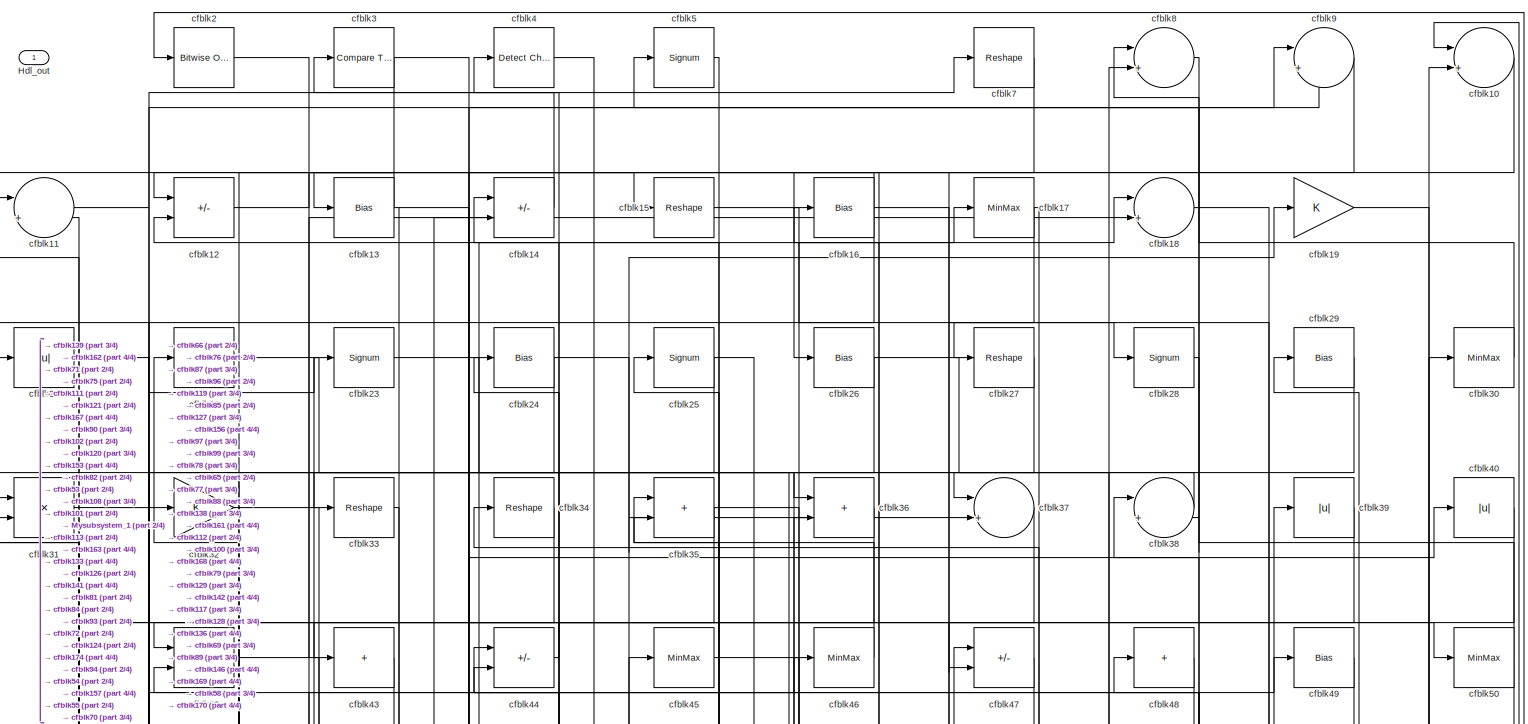
[diagram: root canvas - part 1/4, full width, top band]
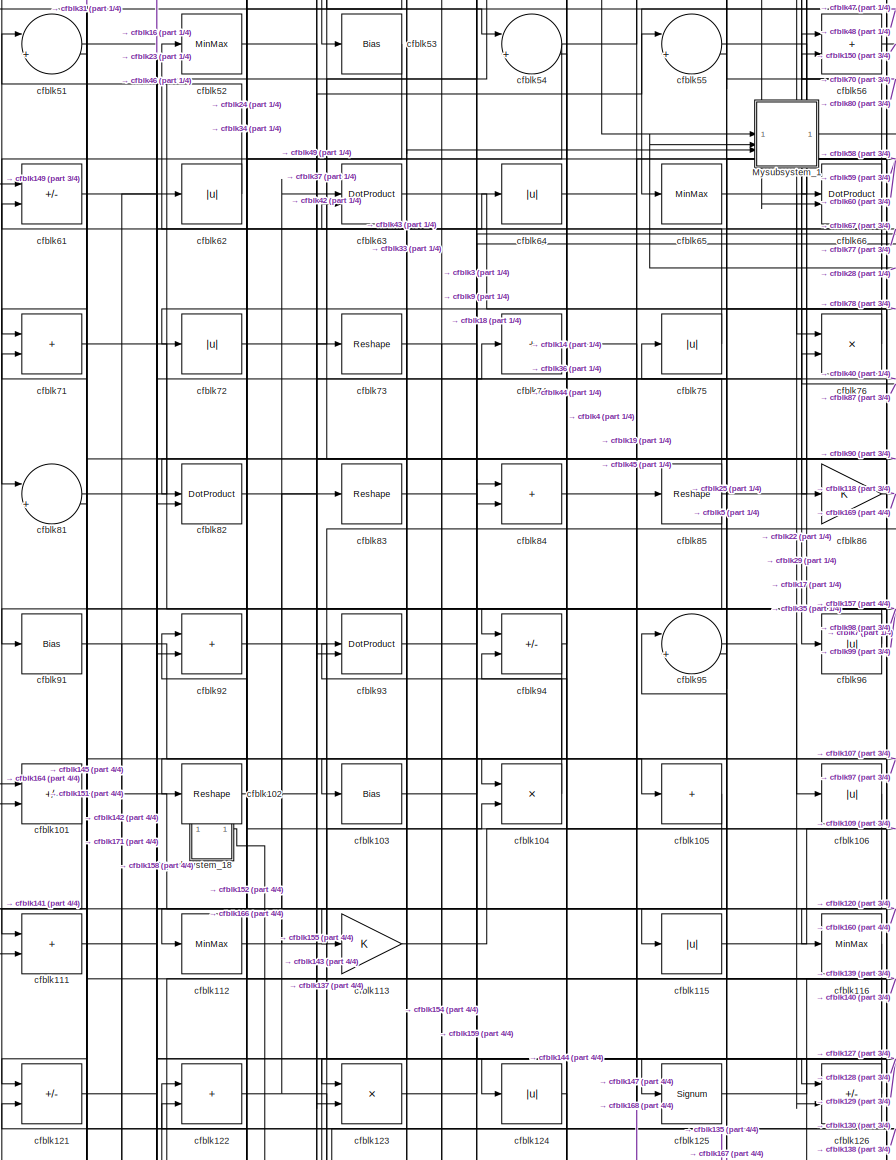
[diagram: root canvas - part 2/4, middle left region]
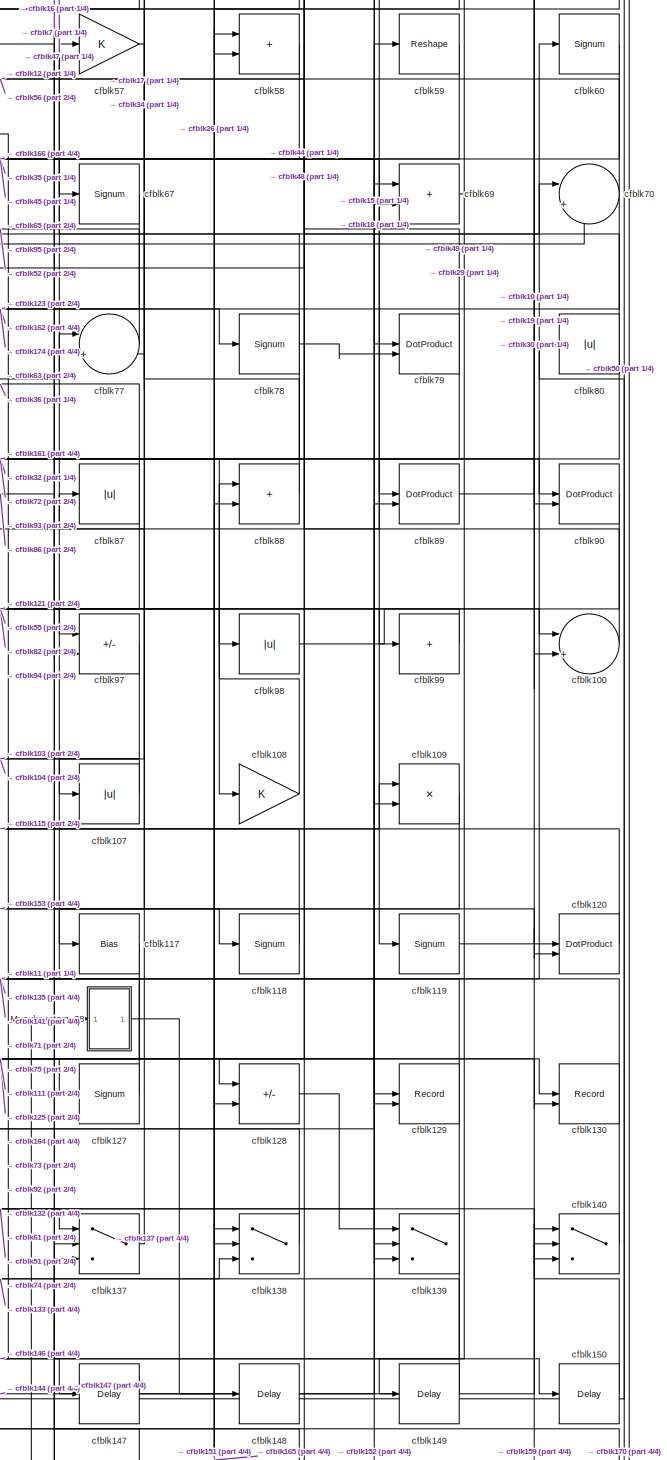
[diagram: root canvas - part 3/4, middle right region]
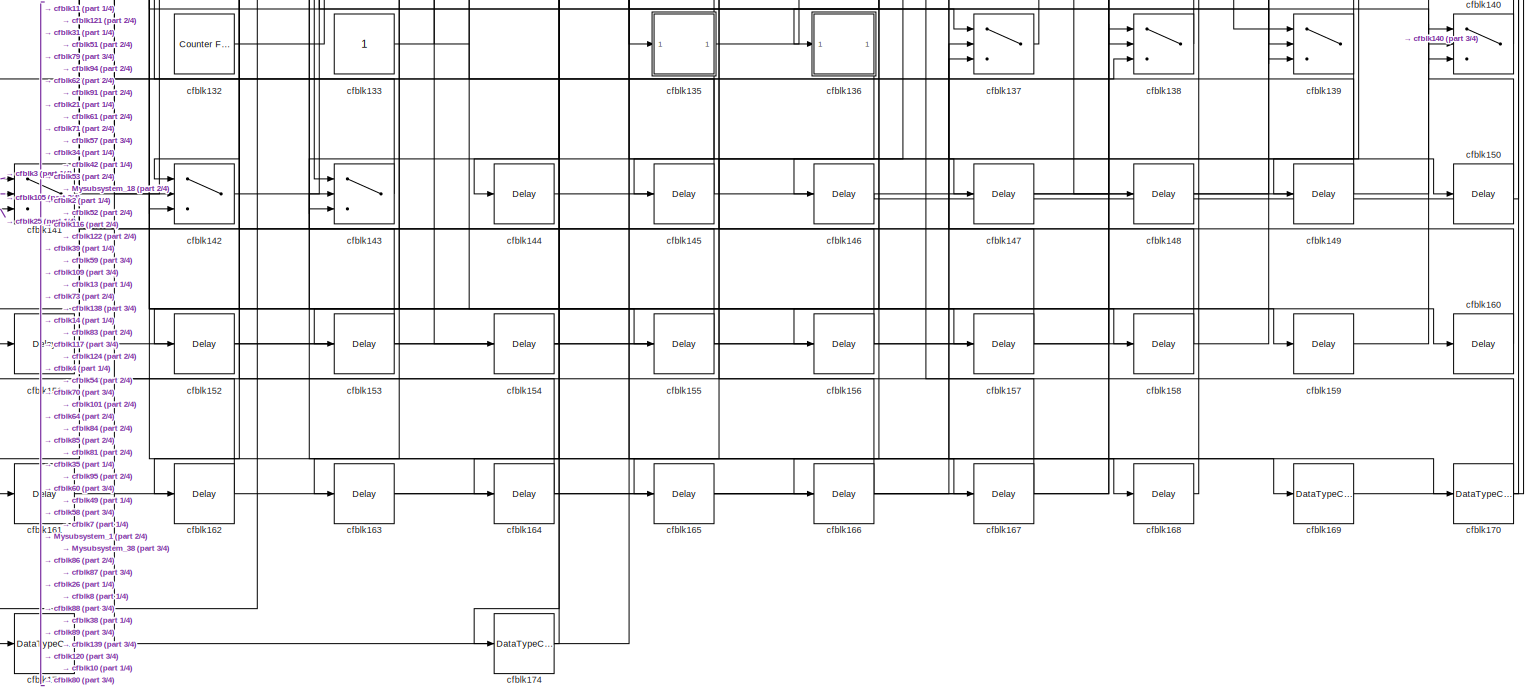
[diagram: root canvas - part 4/4, full width, bottom band]
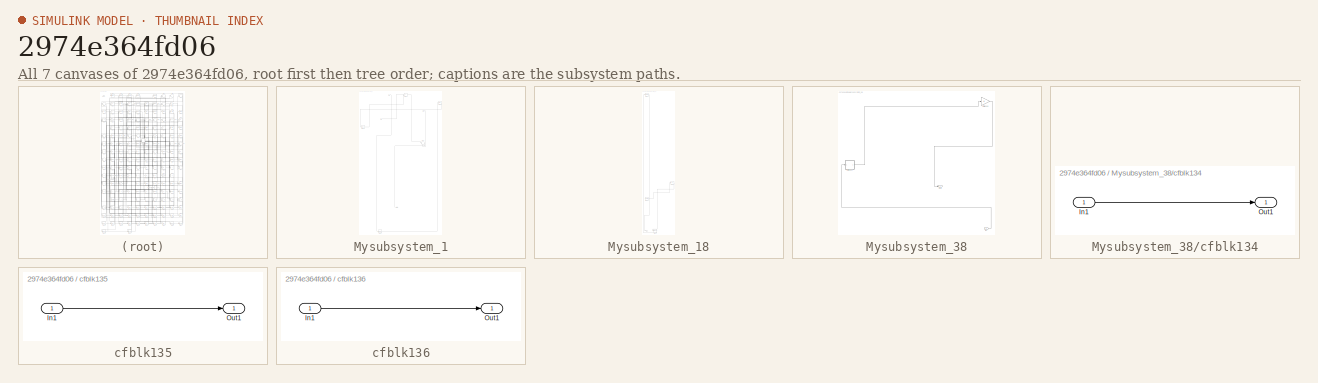
[diagram: thumbnail index - all 7 canvases of the model, root first then tree order]
MODEL slx_2974e364fd06
KIND model
CONFIG AbsTol = auto
CONFIG EnableMultiTasking = off
CONFIG FixedStep = auto
CONFIG MaxStep = auto
CONFIG MinStep = auto
CONFIG RelTol = 1e-3
CONFIG SampleTimeConstraint = Unconstrained
CONFIG SolverName = VariableStepAuto
CONFIG StartTime = 0.0
CONFIG StopTime = 10.0
BLOCK [Outport] Hdl_out
  OutDataTypeStr = uint8
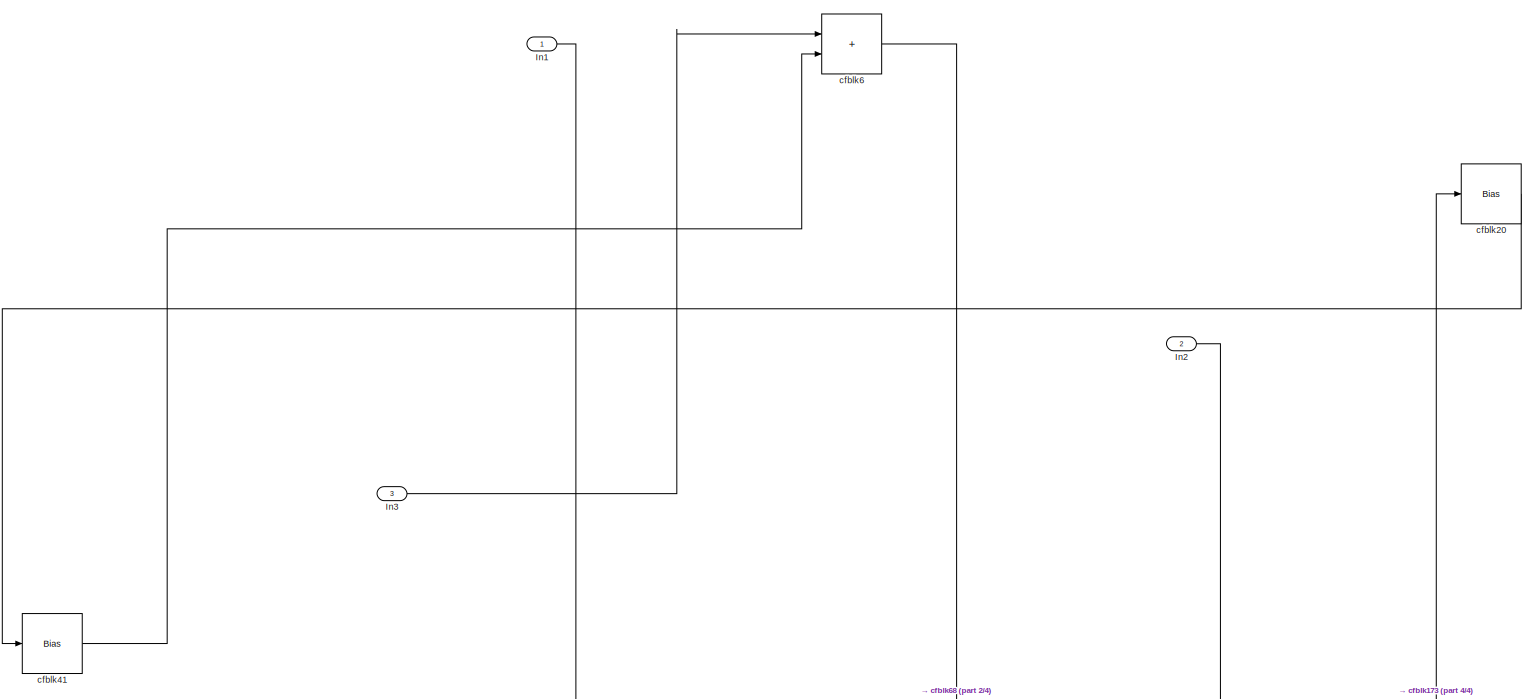
[diagram: Mysubsystem_1 - part 1/4, full width, top band]
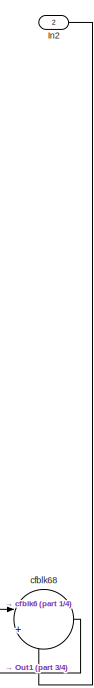
[diagram: Mysubsystem_1 - part 2/4, top right region]
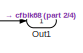
[diagram: Mysubsystem_1 - part 3/4, bottom center region]
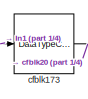
[diagram: Mysubsystem_1 - part 4/4, bottom left region]
BLOCK [SubSystem] Mysubsystem_1
  RTWFcnName = Mysubsystem_1
  RTWFcnNameOpts = User specified
  RTWFileNameOpts = Use function name
  RTWSystemCode = Reusable function
  TreatAsAtomicUnit = on
BLOCK [Inport] Mysubsystem_1/In1
BLOCK [Inport] Mysubsystem_1/In2
  Port = 2
BLOCK [Inport] Mysubsystem_1/In3
  Port = 3
BLOCK [Outport] Mysubsystem_1/Out1
BLOCK [DataTypeConversion] Mysubsystem_1/cfblk173
  OutDataTypeStr = uint8
  RndMeth = Floor
  SaturateOnIntegerOverflow = off
BLOCK [Bias] Mysubsystem_1/cfblk20
  Bias = 0.0
  SaturateOnIntegerOverflow = off
BLOCK [Bias] Mysubsystem_1/cfblk41
  Bias = 0.0
  SaturateOnIntegerOverflow = off
BLOCK [Sum] Mysubsystem_1/cfblk6
  IconShape = rectangular
BLOCK [Sum] Mysubsystem_1/cfblk68
  Inputs = |++
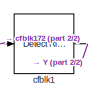
[diagram: Mysubsystem_18 - part 1/2, top left region]
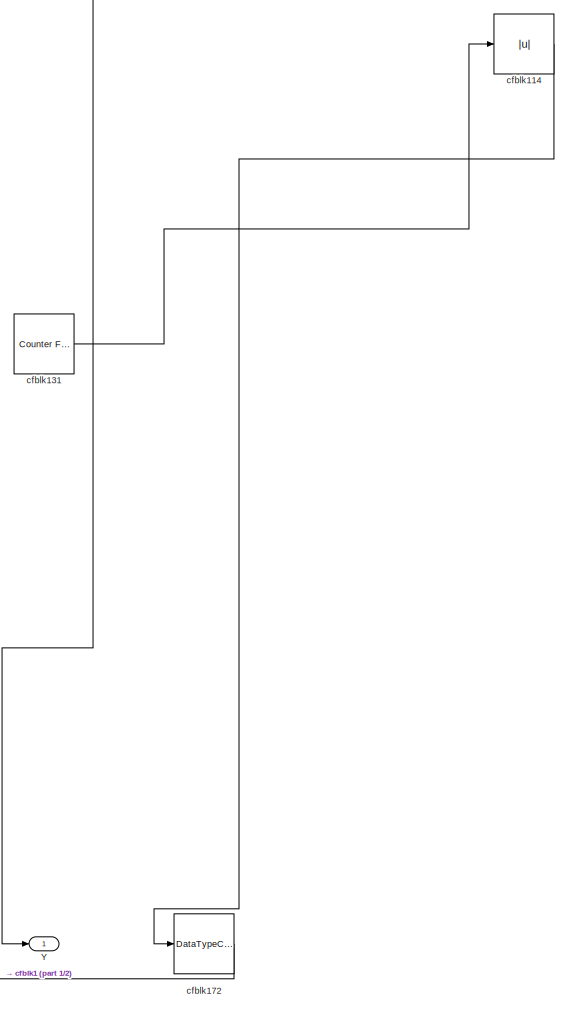
[diagram: Mysubsystem_18 - part 2/2, full width, bottom band]
BLOCK [SubSystem] Mysubsystem_18
  RTWFcnName = Mysubsystem_18
  RTWFcnNameOpts = User specified
  RTWFileNameOpts = Use function name
  RTWSystemCode = Reusable function
  TreatAsAtomicUnit = on
BLOCK [Outport] Mysubsystem_18/Y
BLOCK [Reference] Mysubsystem_18/cfblk1  REF=hdlsllib/Logic and Bit
Operations/Detect Rise
Nonnegative
  SourceBlock = hdlsllib/Logic and Bit\nOperations/Detect Rise\nNonnegative
  SourceType = Detect Rise Nonnegative
BLOCK [Abs] Mysubsystem_18/cfblk114
  SaturateOnIntegerOverflow = off
BLOCK [Reference] Mysubsystem_18/cfblk131  REF=hdlsllib/Sources/Counter
Free-Running
  SourceBlock = hdlsllib/Sources/Counter\nFree-Running
  SourceType = Counter Free-Running
BLOCK [DataTypeConversion] Mysubsystem_18/cfblk172
  OutDataTypeStr = uint8
  RndMeth = Floor
  SaturateOnIntegerOverflow = off
BLOCK [SubSystem] Mysubsystem_38
  RTWFcnName = Mysubsystem_38
  RTWFcnNameOpts = User specified
  RTWFileNameOpts = Use function name
  RTWSystemCode = Reusable function
  TreatAsAtomicUnit = on
BLOCK [Inport] Mysubsystem_38/In1
BLOCK [Outport] Mysubsystem_38/Out1
BLOCK [Gain] Mysubsystem_38/cfblk110
BLOCK [SubSystem] Mysubsystem_38/cfblk134
  LibrarySourceBlock = hdlsllib/Ports &\nSubsystems/Subsystem
BLOCK [Inport] Mysubsystem_38/cfblk134/In1
BLOCK [Outport] Mysubsystem_38/cfblk134/Out1
BLOCK [Sum] cfblk10
  Inputs = |++
  OutDataTypeStr = uint8
BLOCK [Sum] cfblk100
  Inputs = |++
  OutDataTypeStr = uint8
BLOCK [Sum] cfblk101
  IconShape = rectangular
  Inputs = +-
  OutDataTypeStr = uint8
BLOCK [Reshape] cfblk102
BLOCK [Bias] cfblk103
  Bias = 0.0
  SaturateOnIntegerOverflow = off
BLOCK [Product] cfblk104
  Inputs = */
  OutDataTypeStr = uint8
  RndMeth = Zero
  SaturateOnIntegerOverflow = on
BLOCK [Sum] cfblk105
  IconShape = rectangular
  Inputs = +
  OutDataTypeStr = uint8
BLOCK [Abs] cfblk106
  OutDataTypeStr = uint8
  SaturateOnIntegerOverflow = off
BLOCK [Abs] cfblk107
  OutDataTypeStr = uint8
  SaturateOnIntegerOverflow = off
BLOCK [Gain] cfblk108
  OutDataTypeStr = uint8
BLOCK [Product] cfblk109
  Inputs = */
  OutDataTypeStr = uint8
  RndMeth = Zero
  SaturateOnIntegerOverflow = on
BLOCK [Sum] cfblk11
  Inputs = |++
  OutDataTypeStr = uint8
BLOCK [Sum] cfblk111
  IconShape = rectangular
  OutDataTypeStr = uint8
BLOCK [MinMax] cfblk112
  OutDataTypeStr = uint8
BLOCK [Gain] cfblk113
  OutDataTypeStr = uint8
BLOCK [Abs] cfblk115
  OutDataTypeStr = uint8
  SaturateOnIntegerOverflow = off
BLOCK [MinMax] cfblk116
  OutDataTypeStr = uint8
BLOCK [Bias] cfblk117
  Bias = 0.0
  SaturateOnIntegerOverflow = off
BLOCK [Signum] cfblk118
BLOCK [Signum] cfblk119
BLOCK [Sum] cfblk12
  IconShape = rectangular
  Inputs = +-
  OutDataTypeStr = uint8
BLOCK [DotProduct] cfblk120
  OutDataTypeStr = uint8
BLOCK [Sum] cfblk121
  IconShape = rectangular
  Inputs = +-
  OutDataTypeStr = uint8
BLOCK [Sum] cfblk122
  IconShape = rectangular
  OutDataTypeStr = uint8
BLOCK [Product] cfblk123
  Inputs = */
  OutDataTypeStr = uint8
  RndMeth = Zero
  SaturateOnIntegerOverflow = on
BLOCK [Abs] cfblk124
  OutDataTypeStr = uint8
  SaturateOnIntegerOverflow = off
BLOCK [Signum] cfblk125
BLOCK [Sum] cfblk126
  IconShape = rectangular
  Inputs = +-
  OutDataTypeStr = uint8
BLOCK [Signum] cfblk127
BLOCK [Sum] cfblk128
  IconShape = rectangular
  Inputs = +-
  OutDataTypeStr = uint8
BLOCK [Record] cfblk129
  CompatibilityTag = XY
  FileSettingsInternal = {"entries":[{"content":{"excelSettings":{"content":{},"type":"Streamout.ExcelSettings"}},"type":"Streamout.FileSettingStorage","uuid":""}],"packageUris":["http:\/\/schema.mathworks.com\/mf0\/streamout_blocks\/R2020a"],"version":"1.0"}
  Layout = [1 1]
  SignalsInternal = {"entries":[{"content":{"signals":[{"content":{"blockPath":[],"dimensions":[1],"domain":"","lineColor":"#a2142f","plots":[1],"port":1,"signalID":19346,"signalName":"cfblk18"},"type":"RecordBlkView.Signal","uuid":""},{"content":{"blockPath":[],"dimensions":[1],"domain":"","lineColor":"#139fff","plots":[1],"port":2,"signalID":19349,"signalName":"cfblk65"},"type":"RecordBlkView.Signal","uuid":""}]},"...<+142ch>
  VisualizationBindings = {"xyplotplugin":{"info":[{"series":[{"bindingParametersList":[{"parameter":"X-Axis","signalID":19346,"signalName":"cfblk18"},{"parameter":"Y-Axis","signalID":19349,"signalName":"cfblk65"}],"seriesID":1159}],"subplotID":1}]}}
  st = -1
BLOCK [Bias] cfblk13
  Bias = 0.0
  SaturateOnIntegerOverflow = off
BLOCK [Record] cfblk130
  CompatibilityTag = XY
  FileSettingsInternal = {"entries":[{"content":{"excelSettings":{"content":{},"type":"Streamout.ExcelSettings"}},"type":"Streamout.FileSettingStorage","uuid":""}],"packageUris":["http:\/\/schema.mathworks.com\/mf0\/streamout_blocks\/R2020a"],"version":"1.0"}
  Layout = [1 1]
  SignalsInternal = {"entries":[{"content":{"signals":[{"content":{"blockPath":[],"dimensions":[1],"domain":"","lineColor":"#a2142f","plots":[1],"port":1,"signalID":19338,"signalName":"cfblk92"},"type":"RecordBlkView.Signal","uuid":""},{"content":{"blockPath":[],"dimensions":[1],"domain":"","lineColor":"#139fff","plots":[1],"port":2,"signalID":19341,"signalName":"cfblk73"},"type":"RecordBlkView.Signal","uuid":""}]},"...<+142ch>
  VisualizationBindings = {"xyplotplugin":{"info":[{"series":[{"bindingParametersList":[{"parameter":"X-Axis","signalID":19338,"signalName":"cfblk92"},{"parameter":"Y-Axis","signalID":19341,"signalName":"cfblk73"}],"seriesID":26693}],"subplotID":1}]}}
  st = -1
BLOCK [Reference] cfblk132  REF=hdlsllib/Sources/Counter
Free-Running
  SourceBlock = hdlsllib/Sources/Counter\nFree-Running
  SourceType = Counter Free-Running
BLOCK [Constant] cfblk133
  OutDataTypeStr = uint8
  SampleTime = -1
BLOCK [SubSystem] cfblk135
  LibrarySourceBlock = hdlsllib/Ports &\nSubsystems/Subsystem
BLOCK [Inport] cfblk135/In1
BLOCK [Outport] cfblk135/Out1
BLOCK [SubSystem] cfblk136
  LibrarySourceBlock = hdlsllib/Ports &\nSubsystems/Subsystem
BLOCK [Inport] cfblk136/In1
BLOCK [Outport] cfblk136/Out1
BLOCK [Switch] cfblk137
  InputSameDT = off
  OutDataTypeStr = uint8
  SaturateOnIntegerOverflow = off
BLOCK [Switch] cfblk138
  InputSameDT = off
  OutDataTypeStr = uint8
  SaturateOnIntegerOverflow = off
BLOCK [Switch] cfblk139
  InputSameDT = off
  OutDataTypeStr = uint8
  SaturateOnIntegerOverflow = off
BLOCK [Sum] cfblk14
  IconShape = rectangular
  Inputs = +-
  OutDataTypeStr = uint8
BLOCK [Switch] cfblk140
  InputSameDT = off
  OutDataTypeStr = uint8
  SaturateOnIntegerOverflow = off
BLOCK [Switch] cfblk141
  InputSameDT = off
  OutDataTypeStr = uint8
  SaturateOnIntegerOverflow = off
BLOCK [Switch] cfblk142
  InputSameDT = off
  OutDataTypeStr = uint8
  SaturateOnIntegerOverflow = off
BLOCK [Switch] cfblk143
  InputSameDT = off
  OutDataTypeStr = uint8
  SaturateOnIntegerOverflow = off
BLOCK [Delay] cfblk144
  InputPortMap = u0
  SampleTime = 1
BLOCK [Delay] cfblk145
  InputPortMap = u0
  SampleTime = 1
BLOCK [Delay] cfblk146
  InputPortMap = u0
  SampleTime = 1
BLOCK [Delay] cfblk147
  InputPortMap = u0
  SampleTime = 1
BLOCK [Delay] cfblk148
  InputPortMap = u0
  SampleTime = 1
BLOCK [Delay] cfblk149
  InputPortMap = u0
  SampleTime = 1
BLOCK [Reshape] cfblk15
BLOCK [Delay] cfblk150
  InputPortMap = u0
  SampleTime = 1
BLOCK [Delay] cfblk151
  InputPortMap = u0
  SampleTime = 1
BLOCK [Delay] cfblk152
  InputPortMap = u0
  SampleTime = 1
BLOCK [Delay] cfblk153
  InputPortMap = u0
  SampleTime = 1
BLOCK [Delay] cfblk154
  InputPortMap = u0
  SampleTime = 1
BLOCK [Delay] cfblk155
  InputPortMap = u0
  SampleTime = 1
BLOCK [Delay] cfblk156
  InputPortMap = u0
  SampleTime = 1
BLOCK [Delay] cfblk157
  InputPortMap = u0
  SampleTime = 1
BLOCK [Delay] cfblk158
  InputPortMap = u0
  SampleTime = 1
BLOCK [Delay] cfblk159
  InputPortMap = u0
  SampleTime = 1
BLOCK [Bias] cfblk16
  Bias = 0.0
  SaturateOnIntegerOverflow = off
BLOCK [Delay] cfblk160
  InputPortMap = u0
  SampleTime = 1
BLOCK [Delay] cfblk161
  InputPortMap = u0
  SampleTime = 1
BLOCK [Delay] cfblk162
  InputPortMap = u0
  SampleTime = 1
BLOCK [Delay] cfblk163
  InputPortMap = u0
  SampleTime = 1
BLOCK [Delay] cfblk164
  InputPortMap = u0
  SampleTime = 1
BLOCK [Delay] cfblk165
  InputPortMap = u0
  SampleTime = 1
BLOCK [Delay] cfblk166
  InputPortMap = u0
  SampleTime = 1
BLOCK [Delay] cfblk167
  InputPortMap = u0
  SampleTime = 1
BLOCK [Delay] cfblk168
  InputPortMap = u0
  SampleTime = 1
BLOCK [DataTypeConversion] cfblk169
  OutDataTypeStr = uint8
  RndMeth = Floor
  SaturateOnIntegerOverflow = off
BLOCK [MinMax] cfblk17
  OutDataTypeStr = uint8
BLOCK [DataTypeConversion] cfblk170
  OutDataTypeStr = uint8
  RndMeth = Floor
  SaturateOnIntegerOverflow = off
BLOCK [DataTypeConversion] cfblk171
  OutDataTypeStr = uint8
  RndMeth = Floor
  SaturateOnIntegerOverflow = off
BLOCK [DataTypeConversion] cfblk174
  OutDataTypeStr = uint8
  RndMeth = Floor
  SaturateOnIntegerOverflow = off
BLOCK [Sum] cfblk18
  Inputs = |++
  OutDataTypeStr = uint8
BLOCK [Gain] cfblk19
  OutDataTypeStr = uint8
BLOCK [Reference] cfblk2  REF=simulink/Logic and Bit
Operations/Bitwise
Operator
  LibrarySourceBlock = hdlsllib/Logic and Bit\nOperations/Bitwise\nOperator
  SourceBlock = simulink/Logic and Bit\nOperations/Bitwise\nOperator
  SourceType = Bitwise Operator
BLOCK [Abs] cfblk21
  OutDataTypeStr = uint8
  SaturateOnIntegerOverflow = off
BLOCK [Sum] cfblk22
  IconShape = rectangular
  Inputs = +
  OutDataTypeStr = uint8
BLOCK [Signum] cfblk23
BLOCK [Bias] cfblk24
  Bias = 0.0
  SaturateOnIntegerOverflow = off
BLOCK [Signum] cfblk25
BLOCK [Bias] cfblk26
  Bias = 0.0
  SaturateOnIntegerOverflow = off
BLOCK [Reshape] cfblk27
BLOCK [Signum] cfblk28
BLOCK [Bias] cfblk29
  Bias = 0.0
  SaturateOnIntegerOverflow = off
BLOCK [Reference] cfblk3  REF=hdlsllib/Logic and Bit
Operations/Compare
To Zero
  SourceBlock = hdlsllib/Logic and Bit\nOperations/Compare\nTo Zero
  SourceType = Compare To Zero
BLOCK [MinMax] cfblk30
  OutDataTypeStr = uint8
BLOCK [Product] cfblk31
  Inputs = */
  OutDataTypeStr = uint8
  RndMeth = Zero
  SaturateOnIntegerOverflow = on
BLOCK [Gain] cfblk32
  OutDataTypeStr = uint8
BLOCK [Reshape] cfblk33
BLOCK [Reshape] cfblk34
BLOCK [Sum] cfblk35
  IconShape = rectangular
  OutDataTypeStr = uint8
BLOCK [Sum] cfblk36
  IconShape = rectangular
  OutDataTypeStr = uint8
BLOCK [Sum] cfblk37
  Inputs = |++
  OutDataTypeStr = uint8
BLOCK [Sum] cfblk38
  Inputs = |++
  OutDataTypeStr = uint8
BLOCK [Abs] cfblk39
  OutDataTypeStr = uint8
  SaturateOnIntegerOverflow = off
BLOCK [Reference] cfblk4  REF=simulink/Logic and Bit
Operations/Detect
Change
  LibrarySourceBlock = hdlsllib/Logic and Bit\nOperations/Detect\nChange
  SourceBlock = simulink/Logic and Bit\nOperations/Detect\nChange
  SourceType = Detect Change
BLOCK [Abs] cfblk40
  OutDataTypeStr = uint8
  SaturateOnIntegerOverflow = off
BLOCK [Sum] cfblk42
  IconShape = rectangular
  OutDataTypeStr = uint8
BLOCK [Sum] cfblk43
  IconShape = rectangular
  Inputs = +
  OutDataTypeStr = uint8
BLOCK [Sum] cfblk44
  IconShape = rectangular
  Inputs = +-
  OutDataTypeStr = uint8
BLOCK [MinMax] cfblk45
  OutDataTypeStr = uint8
BLOCK [MinMax] cfblk46
  OutDataTypeStr = uint8
BLOCK [Sum] cfblk47
  IconShape = rectangular
  Inputs = +-
  OutDataTypeStr = uint8
BLOCK [Sum] cfblk48
  IconShape = rectangular
  Inputs = +
  OutDataTypeStr = uint8
BLOCK [Bias] cfblk49
  Bias = 0.0
  SaturateOnIntegerOverflow = off
BLOCK [Signum] cfblk5
BLOCK [MinMax] cfblk50
  OutDataTypeStr = uint8
BLOCK [Sum] cfblk51
  Inputs = |++
  OutDataTypeStr = uint8
BLOCK [MinMax] cfblk52
  OutDataTypeStr = uint8
BLOCK [Bias] cfblk53
  Bias = 0.0
  SaturateOnIntegerOverflow = off
BLOCK [Sum] cfblk54
  Inputs = |++
  OutDataTypeStr = uint8
BLOCK [Sum] cfblk55
  Inputs = |++
  OutDataTypeStr = uint8
BLOCK [Sum] cfblk56
  IconShape = rectangular
  OutDataTypeStr = uint8
BLOCK [Gain] cfblk57
  OutDataTypeStr = uint8
BLOCK [Sum] cfblk58
  IconShape = rectangular
  OutDataTypeStr = uint8
BLOCK [Reshape] cfblk59
BLOCK [Signum] cfblk60
BLOCK [Sum] cfblk61
  IconShape = rectangular
  Inputs = +-
  OutDataTypeStr = uint8
BLOCK [Abs] cfblk62
  OutDataTypeStr = uint8
  SaturateOnIntegerOverflow = off
BLOCK [DotProduct] cfblk63
  OutDataTypeStr = uint8
BLOCK [Abs] cfblk64
  OutDataTypeStr = uint8
  SaturateOnIntegerOverflow = off
BLOCK [MinMax] cfblk65
  OutDataTypeStr = uint8
BLOCK [DotProduct] cfblk66
  OutDataTypeStr = uint8
BLOCK [Signum] cfblk67
BLOCK [Sum] cfblk69
  IconShape = rectangular
  OutDataTypeStr = uint8
BLOCK [Reshape] cfblk7
BLOCK [Sum] cfblk70
  Inputs = |++
  OutDataTypeStr = uint8
BLOCK [Sum] cfblk71
  IconShape = rectangular
  OutDataTypeStr = uint8
BLOCK [Abs] cfblk72
  OutDataTypeStr = uint8
  SaturateOnIntegerOverflow = off
BLOCK [Reshape] cfblk73
BLOCK [Sum] cfblk74
  IconShape = rectangular
  Inputs = +
  OutDataTypeStr = uint8
BLOCK [Abs] cfblk75
  OutDataTypeStr = uint8
  SaturateOnIntegerOverflow = off
BLOCK [Product] cfblk76
  Inputs = */
  OutDataTypeStr = uint8
  RndMeth = Zero
  SaturateOnIntegerOverflow = on
BLOCK [Sum] cfblk77
  Inputs = |++
  OutDataTypeStr = uint8
BLOCK [Signum] cfblk78
BLOCK [DotProduct] cfblk79
  OutDataTypeStr = uint8
BLOCK [Sum] cfblk8
  Inputs = |++
  OutDataTypeStr = uint8
BLOCK [Abs] cfblk80
  OutDataTypeStr = uint8
  SaturateOnIntegerOverflow = off
BLOCK [Sum] cfblk81
  Inputs = |++
  OutDataTypeStr = uint8
BLOCK [DotProduct] cfblk82
  OutDataTypeStr = uint8
BLOCK [Reshape] cfblk83
BLOCK [Sum] cfblk84
  IconShape = rectangular
  OutDataTypeStr = uint8
BLOCK [Reshape] cfblk85
BLOCK [Gain] cfblk86
  OutDataTypeStr = uint8
BLOCK [Abs] cfblk87
  OutDataTypeStr = uint8
  SaturateOnIntegerOverflow = off
BLOCK [Sum] cfblk88
  IconShape = rectangular
  OutDataTypeStr = uint8
BLOCK [DotProduct] cfblk89
  OutDataTypeStr = uint8
BLOCK [Sum] cfblk9
  Inputs = |++
  OutDataTypeStr = uint8
BLOCK [DotProduct] cfblk90
  OutDataTypeStr = uint8
BLOCK [Bias] cfblk91
  Bias = 0.0
  SaturateOnIntegerOverflow = off
BLOCK [Sum] cfblk92
  IconShape = rectangular
  OutDataTypeStr = uint8
BLOCK [DotProduct] cfblk93
  OutDataTypeStr = uint8
BLOCK [Sum] cfblk94
  IconShape = rectangular
  Inputs = +-
  OutDataTypeStr = uint8
BLOCK [Sum] cfblk95
  Inputs = |++
  OutDataTypeStr = uint8
BLOCK [Abs] cfblk96
  OutDataTypeStr = uint8
  SaturateOnIntegerOverflow = off
BLOCK [Sum] cfblk97
  IconShape = rectangular
  Inputs = +-
  OutDataTypeStr = uint8
BLOCK [Abs] cfblk98
  OutDataTypeStr = uint8
  SaturateOnIntegerOverflow = off
BLOCK [Sum] cfblk99
  IconShape = rectangular
  Inputs = +
  OutDataTypeStr = uint8
LINE Mysubsystem_1/In1:1 -> Mysubsystem_1/cfblk173:1
LINE Mysubsystem_1/In2:1 -> Mysubsystem_1/cfblk68:2
LINE Mysubsystem_1/In3:1 -> Mysubsystem_1/cfblk6:1
LINE Mysubsystem_1/cfblk173:1 -> Mysubsystem_1/cfblk20:1
LINE Mysubsystem_1/cfblk20:1 -> Mysubsystem_1/cfblk41:1
LINE Mysubsystem_1/cfblk41:1 -> Mysubsystem_1/cfblk6:2
LINE Mysubsystem_1/cfblk68:1 -> Mysubsystem_1/Out1:1
LINE Mysubsystem_1/cfblk6:1 -> Mysubsystem_1/cfblk68:1
LINE Mysubsystem_18/cfblk114:1 -> Mysubsystem_18/cfblk172:1
LINE Mysubsystem_18/cfblk131:1 -> Mysubsystem_18/cfblk114:1
LINE Mysubsystem_18/cfblk172:1 -> Mysubsystem_18/cfblk1:1
LINE Mysubsystem_18/cfblk1:1 -> Mysubsystem_18/Y:1
LINE Mysubsystem_18:1 -> cfblk171:1
LINE Mysubsystem_1:1 -> cfblk145:1
LINE Mysubsystem_38/In1:1 -> Mysubsystem_38/cfblk134:1
LINE Mysubsystem_38/cfblk110:1 -> Mysubsystem_38/Out1:1
LINE Mysubsystem_38/cfblk134/In1:1 -> Mysubsystem_38/cfblk134/Out1:1
LINE Mysubsystem_38/cfblk134:1 -> Mysubsystem_38/cfblk110:1
LINE Mysubsystem_38:1 -> cfblk148:1
LINE cfblk100:1 -> cfblk48:1
NET cfblk101:1 -> cfblk111:2, cfblk135:1
LINE cfblk102:1 -> cfblk55:1
LINE cfblk103:1 -> cfblk70:1
LINE cfblk104:1 -> cfblk93:1
LINE cfblk105:1 -> cfblk141:2
LINE cfblk106:1 -> cfblk116:1
LINE cfblk107:1 -> cfblk103:1
LINE cfblk108:1 -> cfblk88:1
LINE cfblk109:1 -> cfblk153:1
LINE cfblk10:1 -> cfblk26:1
NET cfblk111:1 -> cfblk128:2, cfblk23:1, cfblk9:2
NET cfblk112:1 -> cfblk104:2, cfblk83:1
LINE cfblk113:1 -> cfblk45:1
LINE cfblk115:1 -> cfblk109:1
LINE cfblk116:1 -> cfblk143:1
LINE cfblk117:1 -> cfblk164:1
LINE cfblk118:1 -> cfblk94:2
LINE cfblk119:1 -> cfblk30:1
NET cfblk11:1 -> cfblk7:1, cfblk90:1
LINE cfblk120:1 -> cfblk32:1
NET cfblk121:1 -> cfblk46:1, cfblk92:2
NET cfblk122:1 -> cfblk137:1, cfblk63:1
LINE cfblk123:1 -> cfblk84:1
LINE cfblk124:1 -> cfblk144:1
LINE cfblk125:1 -> cfblk127:1
NET cfblk126:1 -> cfblk63:2, cfblk92:1
LINE cfblk127:1 -> cfblk16:1
LINE cfblk128:1 -> cfblk139:1
LINE cfblk12:1 -> cfblk15:1
LINE cfblk132:1 -> cfblk59:1
NET cfblk133:1 -> cfblk138:3, cfblk14:2, cfblk70:2
LINE cfblk135/In1:1 -> cfblk135/Out1:1
NET cfblk135:1 -> cfblk143:3, cfblk60:1, cfblk81:2
LINE cfblk136/In1:1 -> cfblk136/Out1:1
LINE cfblk136:1 -> cfblk165:1
LINE cfblk137:1 -> cfblk87:1
LINE cfblk138:1 -> cfblk61:2
NET cfblk139:1 -> cfblk11:2, cfblk146:1, cfblk71:2
NET cfblk13:1 -> cfblk12:1, cfblk163:1, cfblk50:1
LINE cfblk140:1 -> cfblk75:1
LINE cfblk141:1 -> cfblk57:1
LINE cfblk142:1 -> cfblk39:1
LINE cfblk143:1 -> cfblk122:1
LINE cfblk144:1 -> cfblk140:2
LINE cfblk145:1 -> cfblk51:2
LINE cfblk146:1 -> cfblk10:1
LINE cfblk147:1 -> cfblk138:1
LINE cfblk148:1 -> cfblk69:1
LINE cfblk149:1 -> cfblk61:1
LINE cfblk14:1 -> cfblk3:1
LINE cfblk150:1 -> cfblk140:1
LINE cfblk151:1 -> cfblk88:2
LINE cfblk152:1 -> cfblk89:2
LINE cfblk153:1 -> cfblk42:2
LINE cfblk154:1 -> cfblk54:2
LINE cfblk155:1 -> cfblk143:2
LINE cfblk156:1 -> cfblk11:1
LINE cfblk157:1 -> cfblk35:2
LINE cfblk158:1 -> cfblk137:2
LINE cfblk159:1 -> cfblk120:1
LINE cfblk15:1 -> cfblk79:1
LINE cfblk160:1 -> cfblk121:2
LINE cfblk161:1 -> cfblk8:2
LINE cfblk162:1 -> cfblk31:2
LINE cfblk163:1 -> cfblk137:3
LINE cfblk164:1 -> cfblk101:1
LINE cfblk165:1 -> cfblk58:1
LINE cfblk166:1 -> cfblk122:2
LINE cfblk167:1 -> cfblk95:1
LINE cfblk168:1 -> cfblk38:1
LINE cfblk169:1 -> cfblk2:1
NET cfblk16:1 -> cfblk13:1, cfblk21:1, cfblk28:1, cfblk82:2, cfblk99:1
NET cfblk170:1 -> Mysubsystem_38:1, cfblk80:1
NET cfblk171:1 -> cfblk62:1, cfblk85:1
LINE cfblk174:1 -> cfblk4:1
NET cfblk17:1 -> cfblk27:1, cfblk77:2
LINE cfblk18:1 -> cfblk129:1
LINE cfblk19:1 -> cfblk100:2
LINE cfblk21:1 -> cfblk167:1
NET cfblk22:1 -> cfblk43:1, cfblk76:1
LINE cfblk23:1 -> cfblk36:1
NET cfblk24:1 -> cfblk37:2, cfblk72:1
NET cfblk25:1 -> cfblk141:3, cfblk66:2
NET cfblk26:1 -> cfblk138:2, cfblk142:3
LINE cfblk27:1 -> cfblk37:1
LINE cfblk28:1 -> Mysubsystem_1:2
LINE cfblk29:1 -> cfblk96:1
LINE cfblk2:1 -> cfblk170:1
LINE cfblk30:1 -> cfblk8:1
LINE cfblk31:1 -> cfblk22:1
LINE cfblk32:1 -> cfblk108:1
NET cfblk33:1 -> Mysubsystem_1:3, cfblk113:1
NET cfblk34:1 -> cfblk111:1, cfblk142:1
NET cfblk35:1 -> cfblk119:1, cfblk71:1
LINE cfblk36:1 -> cfblk124:1
LINE cfblk37:1 -> cfblk53:1
LINE cfblk38:1 -> cfblk33:1
LINE cfblk39:1 -> cfblk42:1
NET cfblk3:1 -> cfblk126:2, cfblk141:1
LINE cfblk40:1 -> cfblk47:2
NET cfblk42:1 -> cfblk18:2, cfblk54:1
LINE cfblk43:1 -> cfblk101:2
LINE cfblk44:1 -> cfblk24:1
LINE cfblk45:1 -> cfblk69:2
LINE cfblk46:1 -> cfblk35:1
LINE cfblk47:1 -> cfblk65:1
LINE cfblk48:1 -> cfblk112:1
NET cfblk49:1 -> cfblk117:1, cfblk128:1, cfblk136:1
LINE cfblk4:1 -> Mysubsystem_1:1
NET cfblk50:1 -> cfblk58:2, cfblk5:1
NET cfblk51:1 -> cfblk126:1, cfblk140:3
NET cfblk52:1 -> cfblk155:1, cfblk73:1
LINE cfblk53:1 -> cfblk152:1
NET cfblk54:1 -> cfblk19:1, cfblk81:1
LINE cfblk55:1 -> cfblk139:2
LINE cfblk56:1 -> cfblk150:1
LINE cfblk57:1 -> cfblk107:1
NET cfblk58:1 -> cfblk166:1, cfblk82:1
LINE cfblk59:1 -> cfblk115:1
LINE cfblk5:1 -> cfblk55:2
LINE cfblk60:1 -> cfblk95:2
NET cfblk61:1 -> cfblk120:2, cfblk160:1
LINE cfblk62:1 -> cfblk51:1
LINE cfblk63:1 -> cfblk78:1
NET cfblk64:1 -> cfblk168:1, cfblk66:1
NET cfblk65:1 -> cfblk129:2, cfblk67:1
NET cfblk66:1 -> cfblk125:1, cfblk56:2
LINE cfblk67:1 -> cfblk86:1
NET cfblk69:1 -> cfblk29:1, cfblk89:1
NET cfblk70:1 -> cfblk123:1, cfblk12:2, cfblk162:1, cfblk174:1
NET cfblk71:1 -> cfblk157:1, cfblk97:1
NET cfblk72:1 -> cfblk18:1, cfblk90:2
NET cfblk73:1 -> cfblk130:2, cfblk154:1
LINE cfblk74:1 -> cfblk139:3
LINE cfblk75:1 -> cfblk31:1
LINE cfblk76:1 -> cfblk25:1
LINE cfblk77:1 -> cfblk52:1
NET cfblk78:1 -> cfblk47:1, cfblk79:2, cfblk93:2
NET cfblk79:1 -> cfblk161:1, cfblk44:1
NET cfblk7:1 -> cfblk156:1, cfblk84:2, cfblk97:2
NET cfblk80:1 -> cfblk149:1, cfblk56:1
NET cfblk81:1 -> cfblk158:1, cfblk9:1
NET cfblk82:1 -> cfblk49:1, cfblk74:1, cfblk98:1
LINE cfblk83:1 -> cfblk159:1
LINE cfblk84:1 -> cfblk147:1
NET cfblk85:1 -> cfblk123:2, cfblk14:1, cfblk17:1
NET cfblk86:1 -> cfblk118:1, cfblk169:1
NET cfblk87:1 -> cfblk121:1, cfblk36:2
LINE cfblk88:1 -> cfblk34:1
LINE cfblk89:1 -> cfblk10:2
LINE cfblk8:1 -> cfblk38:2
LINE cfblk90:1 -> cfblk109:2
NET cfblk91:1 -> cfblk105:1, cfblk142:2, cfblk64:1, cfblk76:2
LINE cfblk92:1 -> cfblk130:1
NET cfblk93:1 -> cfblk40:1, cfblk77:1
NET cfblk94:1 -> cfblk151:1, cfblk44:2
LINE cfblk95:1 -> cfblk106:1
LINE cfblk96:1 -> cfblk91:1
LINE cfblk97:1 -> cfblk104:1
LINE cfblk98:1 -> cfblk100:1
LINE cfblk99:1 -> cfblk94:1
LINE cfblk9:1 -> cfblk102:1
note: NET lines group one-source signal fan-out (src -> all destinations, sorted); 1:1 wires keep LINE
